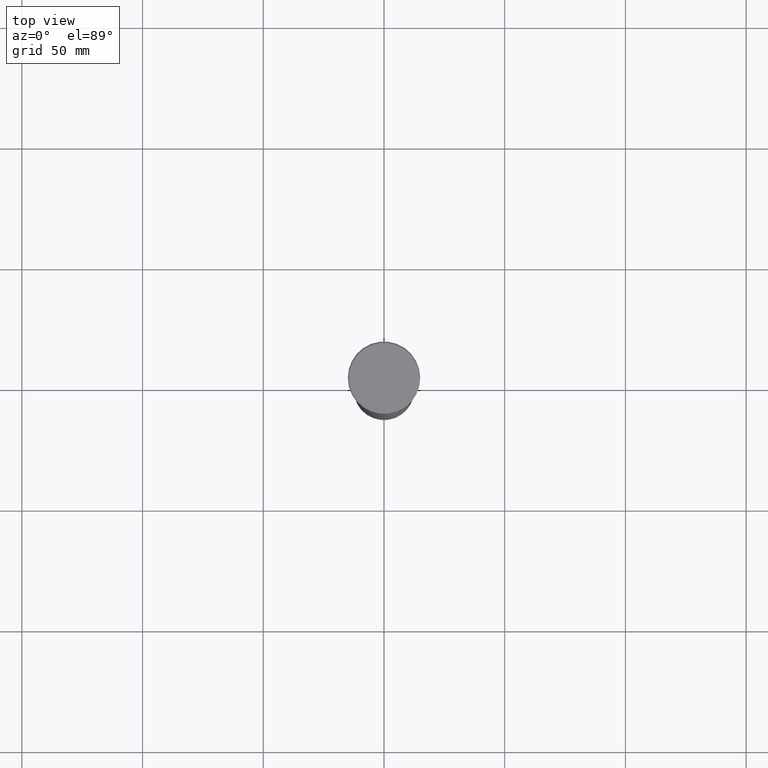
[diagram: clean part render]
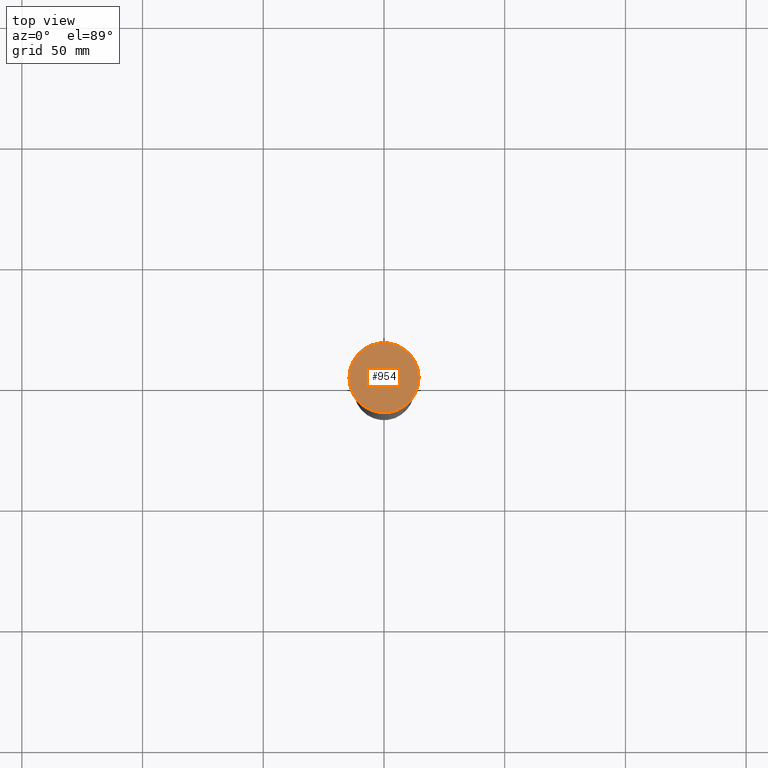
[diagram: same view with one face highlighted and labeled with its STEP entity id]
A machine part, top view. The second image highlights one B-rep face of the part: STEP entity #954.
In plain terms, the highlighted planar face has unit normal (0, -0, 1).
Its self-contained STEP definition (entity closure, byte-faithful):
#9 = DIRECTION ( 'NONE',  ( 1.000000000000000000, 0.000000000000000000, 0.000000000000000000 ) ) ;
#113 = VERTEX_POINT ( 'NONE', #743 ) ;
#146 = ORIENTED_EDGE ( 'NONE', *, *, #438, .T. ) ;
#181 = ORIENTED_EDGE ( 'NONE', *, *, #784, .T. ) ;
#190 = AXIS2_PLACEMENT_3D ( 'NONE', #1010, #416, #9 ) ;
#202 = AXIS2_PLACEMENT_3D ( 'NONE', #1026, #298, #959 ) ;
#298 = DIRECTION ( 'NONE',  ( -0.000000000000000000, -0.000000000000000000, 1.000000000000000000 ) ) ;
#416 = DIRECTION ( 'NONE',  ( -0.000000000000000000, -0.000000000000000000, 1.000000000000000000 ) ) ;
#438 = EDGE_CURVE ( 'NONE', #783, #113, #699, .T. ) ;
#445 = CIRCLE ( 'NONE', #190, 14.50000000000000355 ) ;
#482 = DIRECTION ( 'NONE',  ( 0.000000000000000000, -0.000000000000000000, 1.000000000000000000 ) ) ;
#489 = DIRECTION ( 'NONE',  ( 1.000000000000000000, 0.000000000000000000, 0.000000000000000000 ) ) ;
#566 = CARTESIAN_POINT ( 'NONE',  ( 0.000000000000000000, 0.000000000000000000, 0.000000000000000000 ) ) ;
#688 = CARTESIAN_POINT ( 'NONE',  ( -14.50000000000000355, 0.000000000000000000, 0.000000000000000000 ) ) ;
#699 = CIRCLE ( 'NONE', #202, 14.50000000000000355 ) ;
#743 = CARTESIAN_POINT ( 'NONE',  ( 14.50000000000000355, 1.806354028742346196E-15, 0.000000000000000000 ) ) ;
#783 = VERTEX_POINT ( 'NONE', #688 ) ;
#784 = EDGE_CURVE ( 'NONE', #113, #783, #445, .T. ) ;
#809 = AXIS2_PLACEMENT_3D ( 'NONE', #566, #482, #489 ) ;
#882 = FACE_OUTER_BOUND ( 'NONE', #915, .T. ) ;
#886 = PLANE ( 'NONE',  #809 ) ;
#915 = EDGE_LOOP ( 'NONE', ( #146, #181 ) ) ;
#954 = ADVANCED_FACE ( 'NONE', ( #882 ), #886, .T. ) ;
#959 = DIRECTION ( 'NONE',  ( 1.000000000000000000, 0.000000000000000000, 0.000000000000000000 ) ) ;
#1010 = CARTESIAN_POINT ( 'NONE',  ( 0.000000000000000000, 0.000000000000000000, 0.000000000000000000 ) ) ;
#1026 = CARTESIAN_POINT ( 'NONE',  ( 0.000000000000000000, 0.000000000000000000, 0.000000000000000000 ) ) ;